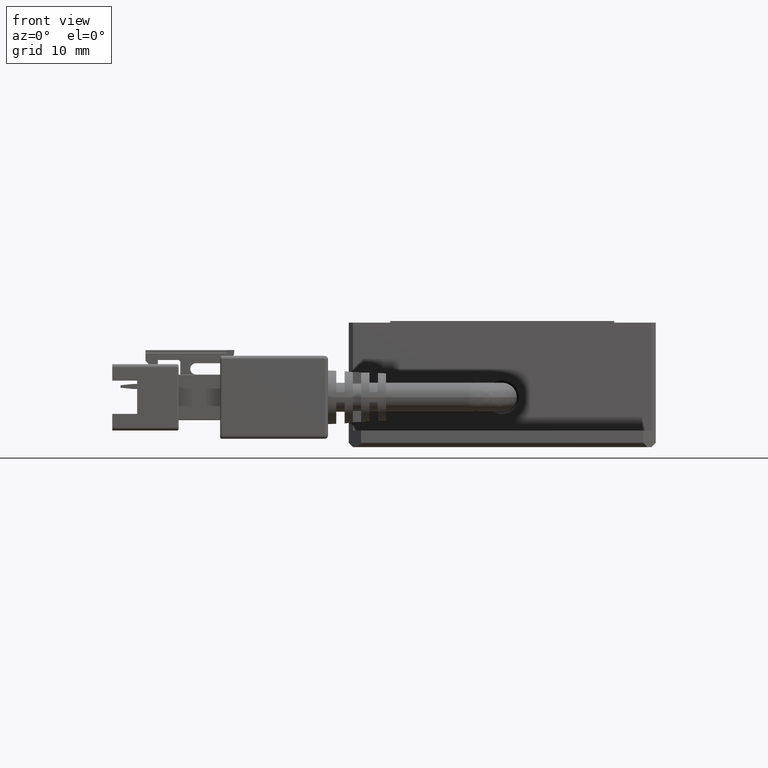
[diagram: clean part render]
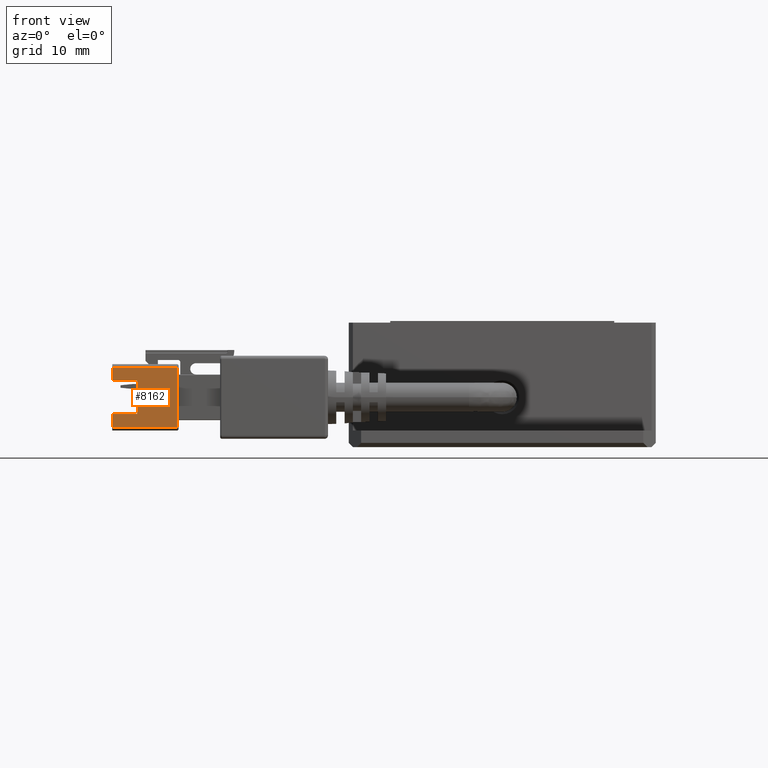
[diagram: same view with one face highlighted and labeled with its STEP entity id]
A machine part, front view. The second image highlights one B-rep face of the part: STEP entity #8162.
In plain terms, the highlighted planar face has unit normal (-0, 1, 0).
Its self-contained STEP definition (entity closure, byte-faithful):
#90 = VECTOR ( 'NONE', #10079, 1000.000000000000000 ) ;
#224 = CARTESIAN_POINT ( 'NONE',  ( -38.72940053455517500, -42.05364642993505700, 0.3999999999836313400 ) ) ;
#278 = DIRECTION ( 'NONE',  ( 1.000000000000000000, 6.162975822039154700E-033, 5.345529420184391300E-049 ) ) ;
#461 = CARTESIAN_POINT ( 'NONE',  ( -38.72940053455517500, -42.05364642993505700, -1.636798335757916300E-011 ) ) ;
#536 = CARTESIAN_POINT ( 'NONE',  ( -43.52940053455517200, -42.05364642993505700, -1.636798335757916300E-011 ) ) ;
#748 = LINE ( 'NONE', #8116, #90 ) ;
#1030 = PLANE ( 'NONE',  #18528 ) ;
#2332 = ORIENTED_EDGE ( 'NONE', *, *, #23767, .F. ) ;
#2802 = DIRECTION ( 'NONE',  ( 0.0000000000000000000, -8.673617379884035500E-017, 1.000000000000000000 ) ) ;
#2863 = DIRECTION ( 'NONE',  ( -1.000000000000000000, -6.162975822039154700E-033, -5.345529420184391300E-049 ) ) ;
#3872 = ORIENTED_EDGE ( 'NONE', *, *, #21753, .F. ) ;
#4352 = CARTESIAN_POINT ( 'NONE',  ( -46.52940053455518000, -42.05364642993505700, 7.599999999983632300 ) ) ;
#4636 = DIRECTION ( 'NONE',  ( -0.0000000000000000000, 8.673617379884035500E-017, -1.000000000000000000 ) ) ;
#4647 = VECTOR ( 'NONE', #278, 1000.000000000000000 ) ;
#4872 = CARTESIAN_POINT ( 'NONE',  ( -46.52940053455518700, -42.05364642993505700, 1.999999999983630000 ) ) ;
#5281 = LINE ( 'NONE', #4352, #4647 ) ;
#5575 = EDGE_CURVE ( 'NONE', #14946, #24784, #10387, .T. ) ;
#5579 = CARTESIAN_POINT ( 'NONE',  ( -43.52940053455518000, -42.05364642993505700, 5.999999999983629100 ) ) ;
#5588 = VERTEX_POINT ( 'NONE', #22961 ) ;
#5631 = FACE_OUTER_BOUND ( 'NONE', #13653, .T. ) ;
#6880 = VECTOR ( 'NONE', #4636, 1000.000000000000000 ) ;
#7139 = LINE ( 'NONE', #24938, #26343 ) ;
#7352 = ORIENTED_EDGE ( 'NONE', *, *, #8599, .F. ) ;
#7618 = VECTOR ( 'NONE', #14940, 1000.000000000000000 ) ;
#7965 = VERTEX_POINT ( 'NONE', #224 ) ;
#8059 = ORIENTED_EDGE ( 'NONE', *, *, #15358, .F. ) ;
#8116 = CARTESIAN_POINT ( 'NONE',  ( -46.52940053455518000, -42.05364642993505700, 1.999999999983630000 ) ) ;
#8162 = ADVANCED_FACE ( 'NONE', ( #5631 ), #1030, .F. ) ;
#8527 = EDGE_CURVE ( 'NONE', #24784, #5588, #5281, .T. ) ;
#8599 = EDGE_CURVE ( 'NONE', #5588, #7965, #23255, .T. ) ;
#9158 = CARTESIAN_POINT ( 'NONE',  ( -46.52940053455518000, -42.05364642993505700, 0.3999999999836313400 ) ) ;
#9357 = LINE ( 'NONE', #9158, #14830 ) ;
#10079 = DIRECTION ( 'NONE',  ( 1.000000000000000000, 6.162975822039154700E-033, 5.345529420184391300E-049 ) ) ;
#10186 = VERTEX_POINT ( 'NONE', #4872 ) ;
#10387 = LINE ( 'NONE', #14706, #20674 ) ;
#10547 = VERTEX_POINT ( 'NONE', #12042 ) ;
#11364 = DIRECTION ( 'NONE',  ( -6.162975822039154700E-033, 1.000000000000000000, 8.673617379884035500E-017 ) ) ;
#12042 = CARTESIAN_POINT ( 'NONE',  ( -43.52940053455518000, -42.05364642993505700, 1.999999999983630000 ) ) ;
#12642 = DIRECTION ( 'NONE',  ( -1.000000000000000000, -6.162975822039154700E-033, -5.345529420184391300E-049 ) ) ;
#13079 = CARTESIAN_POINT ( 'NONE',  ( -46.52940053455518000, -42.05364642993505700, 7.999999999983630900 ) ) ;
#13461 = VECTOR ( 'NONE', #2802, 1000.000000000000000 ) ;
#13653 = EDGE_LOOP ( 'NONE', ( #7352, #25500, #25346, #3872, #15659, #2332, #22813, #8059 ) ) ;
#14097 = LINE ( 'NONE', #13079, #13461 ) ;
#14706 = CARTESIAN_POINT ( 'NONE',  ( -46.52940053455518000, -42.05364642993505700, -1.636798335757916300E-011 ) ) ;
#14830 = VECTOR ( 'NONE', #2863, 1000.000000000000000 ) ;
#14903 = CARTESIAN_POINT ( 'NONE',  ( -46.52940053455518000, -42.05364642993505700, 0.3999999999836308900 ) ) ;
#14940 = DIRECTION ( 'NONE',  ( 0.0000000000000000000, -8.673617379884035500E-017, 1.000000000000000000 ) ) ;
#14946 = VERTEX_POINT ( 'NONE', #24614 ) ;
#15358 = EDGE_CURVE ( 'NONE', #7965, #21035, #9357, .T. ) ;
#15659 = ORIENTED_EDGE ( 'NONE', *, *, #25614, .F. ) ;
#16236 = CARTESIAN_POINT ( 'NONE',  ( -46.52940053455518000, -42.05364642993505700, 7.599999999983632300 ) ) ;
#16786 = EDGE_CURVE ( 'NONE', #21035, #10186, #14097, .T. ) ;
#18528 = AXIS2_PLACEMENT_3D ( 'NONE', #23657, #11364, #25686 ) ;
#18858 = DIRECTION ( 'NONE',  ( 0.0000000000000000000, -8.673617379884035500E-017, 1.000000000000000000 ) ) ;
#20674 = VECTOR ( 'NONE', #18858, 1000.000000000000000 ) ;
#21035 = VERTEX_POINT ( 'NONE', #14903 ) ;
#21753 = EDGE_CURVE ( 'NONE', #25865, #14946, #7139, .T. ) ;
#22813 = ORIENTED_EDGE ( 'NONE', *, *, #16786, .F. ) ;
#22961 = CARTESIAN_POINT ( 'NONE',  ( -38.72940053455517500, -42.05364642993505700, 7.599999999983632300 ) ) ;
#23255 = LINE ( 'NONE', #461, #6880 ) ;
#23354 = LINE ( 'NONE', #536, #7618 ) ;
#23657 = CARTESIAN_POINT ( 'NONE',  ( -46.52940053455518000, -42.05364642993505700, -1.636798335757916300E-011 ) ) ;
#23767 = EDGE_CURVE ( 'NONE', #10186, #10547, #748, .T. ) ;
#24614 = CARTESIAN_POINT ( 'NONE',  ( -46.52940053455518700, -42.05364642993505700, 5.999999999983629100 ) ) ;
#24784 = VERTEX_POINT ( 'NONE', #16236 ) ;
#24938 = CARTESIAN_POINT ( 'NONE',  ( -46.52940053455518000, -42.05364642993505700, 5.999999999983629100 ) ) ;
#25346 = ORIENTED_EDGE ( 'NONE', *, *, #5575, .F. ) ;
#25500 = ORIENTED_EDGE ( 'NONE', *, *, #8527, .F. ) ;
#25614 = EDGE_CURVE ( 'NONE', #10547, #25865, #23354, .T. ) ;
#25686 = DIRECTION ( 'NONE',  ( -0.0000000000000000000, 8.673617379884035500E-017, -1.000000000000000000 ) ) ;
#25865 = VERTEX_POINT ( 'NONE', #5579 ) ;
#26343 = VECTOR ( 'NONE', #12642, 1000.000000000000000 ) ;